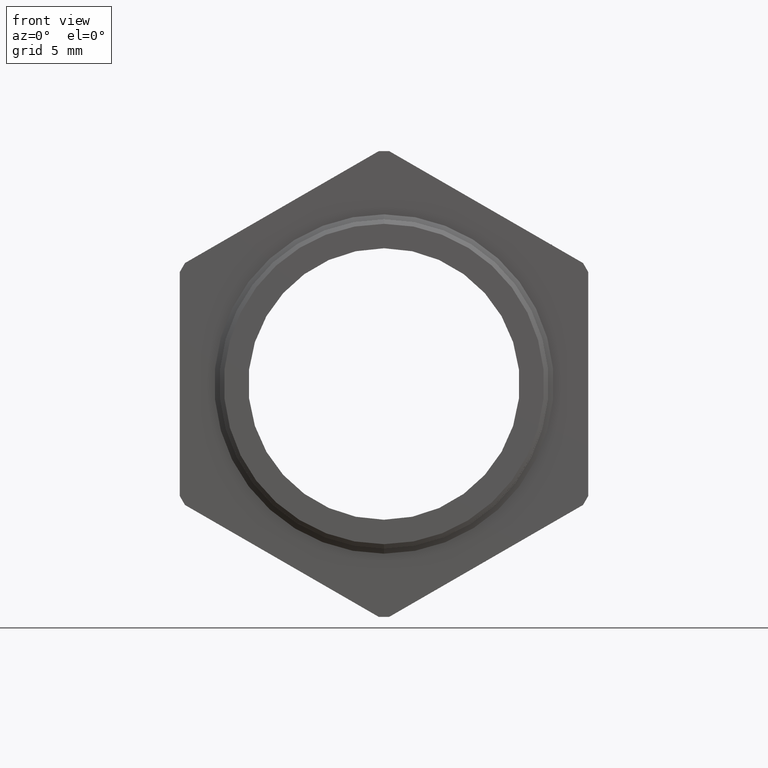
[diagram: clean part render]
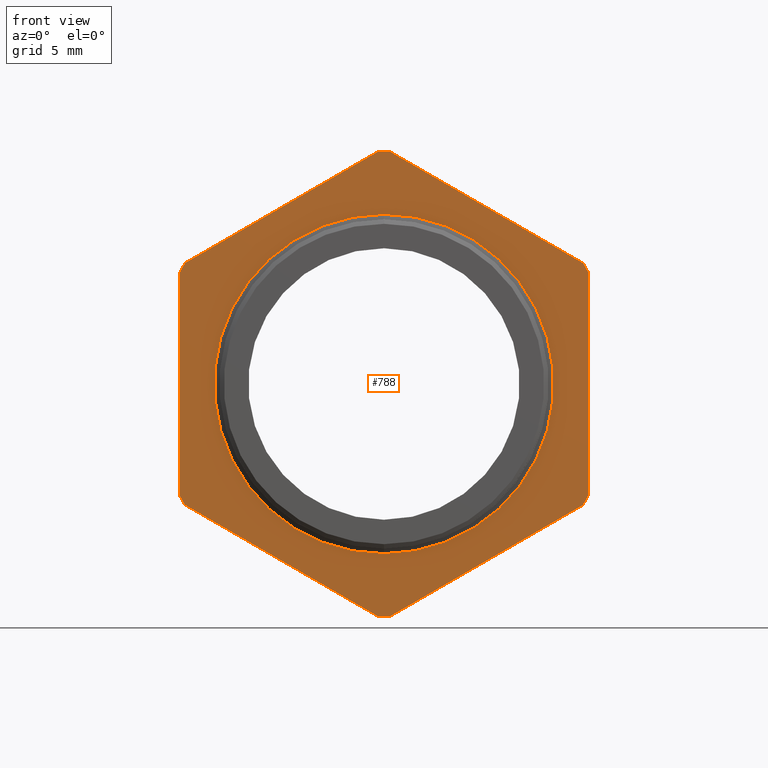
[diagram: same view with one face highlighted and labeled with its STEP entity id]
A machine part, front view. The second image highlights one B-rep face of the part: STEP entity #788.
In plain terms, the highlighted planar face has unit normal (0, -1, -0).
Its self-contained STEP definition (entity closure, byte-faithful):
#6 = VERTEX_POINT ( 'NONE', #1080 ) ;
#87 = VERTEX_POINT ( 'NONE', #1243 ) ;
#91 = EDGE_CURVE ( 'NONE', #6, #87, #1300, .T. ) ;
#419 = EDGE_CURVE ( 'NONE', #445, #420, #1915, .T. ) ;
#420 = VERTEX_POINT ( 'NONE', #1906 ) ;
#445 = VERTEX_POINT ( 'NONE', #1980 ) ;
#652 = VERTEX_POINT ( 'NONE', #2333 ) ;
#656 = VERTEX_POINT ( 'NONE', #2328 ) ;
#658 = EDGE_CURVE ( 'NONE', #678, #656, #2327, .T. ) ;
#663 = VERTEX_POINT ( 'NONE', #2375 ) ;
#678 = VERTEX_POINT ( 'NONE', #2412 ) ;
#688 = EDGE_CURVE ( 'NONE', #761, #768, #2392, .T. ) ;
#695 = VERTEX_POINT ( 'NONE', #2433 ) ;
#702 = VERTEX_POINT ( 'NONE', #2421 ) ;
#704 = EDGE_CURVE ( 'NONE', #695, #702, #2483, .T. ) ;
#706 = EDGE_CURVE ( 'NONE', #87, #652, #2476, .T. ) ;
#711 = VERTEX_POINT ( 'NONE', #2457 ) ;
#718 = VERTEX_POINT ( 'NONE', #2507 ) ;
#720 = EDGE_CURVE ( 'NONE', #711, #718, #2506, .T. ) ;
#722 = VERTEX_POINT ( 'NONE', #2497 ) ;
#724 = EDGE_CURVE ( 'NONE', #663, #722, #2496, .T. ) ;
#736 = EDGE_CURVE ( 'NONE', #768, #695, #2524, .T. ) ;
#751 = EDGE_CURVE ( 'NONE', #656, #761, #2541, .T. ) ;
#761 = VERTEX_POINT ( 'NONE', #2567 ) ;
#768 = VERTEX_POINT ( 'NONE', #2613 ) ;
#770 = ORIENTED_EDGE ( 'NONE', *, *, #724, .T. ) ;
#771 = ORIENTED_EDGE ( 'NONE', *, *, #787, .T. ) ;
#772 = ORIENTED_EDGE ( 'NONE', *, *, #658, .T. ) ;
#773 = ORIENTED_EDGE ( 'NONE', *, *, #751, .T. ) ;
#774 = ORIENTED_EDGE ( 'NONE', *, *, #688, .T. ) ;
#775 = ORIENTED_EDGE ( 'NONE', *, *, #736, .T. ) ;
#776 = ORIENTED_EDGE ( 'NONE', *, *, #704, .T. ) ;
#777 = ORIENTED_EDGE ( 'NONE', *, *, #805, .T. ) ;
#787 = EDGE_CURVE ( 'NONE', #722, #678, #2598, .T. ) ;
#788 = ADVANCED_FACE ( 'NONE', ( #2646, #2645 ), #2644, .T. ) ;
#789 = EDGE_LOOP ( 'NONE', ( #790, #846 ) ) ;
#790 = ORIENTED_EDGE ( 'NONE', *, *, #845, .F. ) ;
#792 = EDGE_CURVE ( 'NONE', #718, #6, #2639, .T. ) ;
#802 = EDGE_CURVE ( 'NONE', #652, #663, #2677, .T. ) ;
#805 = EDGE_CURVE ( 'NONE', #702, #711, #2667, .T. ) ;
#834 = ORIENTED_EDGE ( 'NONE', *, *, #720, .T. ) ;
#835 = ORIENTED_EDGE ( 'NONE', *, *, #792, .T. ) ;
#836 = ORIENTED_EDGE ( 'NONE', *, *, #91, .T. ) ;
#837 = ORIENTED_EDGE ( 'NONE', *, *, #706, .T. ) ;
#838 = ORIENTED_EDGE ( 'NONE', *, *, #802, .T. ) ;
#845 = EDGE_CURVE ( 'NONE', #420, #445, #2719, .T. ) ;
#846 = ORIENTED_EDGE ( 'NONE', *, *, #419, .F. ) ;
#847 = EDGE_LOOP ( 'NONE', ( #770, #771, #772, #773, #774, #775, #776, #777, #834, #835, #836, #837, #838 ) ) ;
#1080 = CARTESIAN_POINT ( 'NONE',  ( -0.01610430421661499000, 0.7500000000000001100, -0.7066165094205616400 ) ) ;
#1243 = CARTESIAN_POINT ( 'NONE',  ( 0.0000000000000000000, 0.7500000000000001100, -0.7067999999999999800 ) ) ;
#1296 = DIRECTION ( 'NONE',  ( 0.0000000000000000000, 0.0000000000000000000, -1.000000000000000000 ) ) ;
#1297 = DIRECTION ( 'NONE',  ( -0.0000000000000000000, -1.000000000000000000, -0.0000000000000000000 ) ) ;
#1298 = CARTESIAN_POINT ( 'NONE',  ( 0.0000000000000000000, 0.7500000000000001100, 0.0000000000000000000 ) ) ;
#1299 = AXIS2_PLACEMENT_3D ( 'NONE', #1298, #1297, #1296 ) ;
#1300 = CIRCLE ( 'NONE', #1299, 0.7067999999999999800 ) ;
#1906 = CARTESIAN_POINT ( 'NONE',  ( 0.0000000000000000000, 0.7499999999999995600, 0.5150000000000000100 ) ) ;
#1907 = DIRECTION ( 'NONE',  ( 0.0000000000000000000, 0.0000000000000000000, -1.000000000000000000 ) ) ;
#1908 = DIRECTION ( 'NONE',  ( -0.0000000000000000000, -1.000000000000000000, -0.0000000000000000000 ) ) ;
#1909 = CARTESIAN_POINT ( 'NONE',  ( 0.0000000000000000000, 0.7499999999999995600, 0.0000000000000000000 ) ) ;
#1910 = AXIS2_PLACEMENT_3D ( 'NONE', #1909, #1908, #1907 ) ;
#1915 = CIRCLE ( 'NONE', #1910, 0.5150000000000000100 ) ;
#1980 = CARTESIAN_POINT ( 'NONE',  ( 6.306931015608869800E-017, 0.7499999999999995600, -0.5150000000000000100 ) ) ;
#2141 = DIRECTION ( 'NONE',  ( 0.0000000000000000000, 0.0000000000000000000, -1.000000000000000000 ) ) ;
#2142 = DIRECTION ( 'NONE',  ( -0.0000000000000000000, -1.000000000000000000, -0.0000000000000000000 ) ) ;
#2327 = CIRCLE ( 'NONE', #2389, 0.7067999999999999800 ) ;
#2328 = CARTESIAN_POINT ( 'NONE',  ( 0.6038956957833852000, 0.7500000000000001100, 0.3672549912721420600 ) ) ;
#2333 = CARTESIAN_POINT ( 'NONE',  ( 0.01610430421661424000, 0.7500000000000001100, -0.7066165094205617600 ) ) ;
#2375 = CARTESIAN_POINT ( 'NONE',  ( 0.6038956957833853100, 0.7500000000000001100, -0.3672549912721419000 ) ) ;
#2386 = DIRECTION ( 'NONE',  ( 0.0000000000000000000, 0.0000000000000000000, -1.000000000000000000 ) ) ;
#2387 = DIRECTION ( 'NONE',  ( -0.0000000000000000000, -1.000000000000000000, -0.0000000000000000000 ) ) ;
#2388 = CARTESIAN_POINT ( 'NONE',  ( 0.0000000000000000000, 0.7500000000000001100, 0.0000000000000000000 ) ) ;
#2389 = AXIS2_PLACEMENT_3D ( 'NONE', #2388, #2387, #2386 ) ;
#2390 = CARTESIAN_POINT ( 'NONE',  ( 0.0000000000000000000, 0.7500000000000001100, 0.0000000000000000000 ) ) ;
#2391 = AXIS2_PLACEMENT_3D ( 'NONE', #2390, #2142, #2141 ) ;
#2392 = CIRCLE ( 'NONE', #2391, 0.7067999999999999800 ) ;
#2412 = CARTESIAN_POINT ( 'NONE',  ( 0.6199999999999996600, 0.7500000000000001100, 0.3393615181484196900 ) ) ;
#2421 = CARTESIAN_POINT ( 'NONE',  ( -0.6200000000000000000, 0.7500000000000001100, 0.3393615181484195300 ) ) ;
#2433 = CARTESIAN_POINT ( 'NONE',  ( -0.6038956957833848700, 0.7500000000000001100, 0.3672549912721424500 ) ) ;
#2457 = CARTESIAN_POINT ( 'NONE',  ( -0.6200000000000000000, 0.7500000000000001100, -0.3393615181484192500 ) ) ;
#2468 = DIRECTION ( 'NONE',  ( 0.0000000000000000000, 0.0000000000000000000, -1.000000000000000000 ) ) ;
#2469 = DIRECTION ( 'NONE',  ( -0.0000000000000000000, -1.000000000000000000, -0.0000000000000000000 ) ) ;
#2470 = CARTESIAN_POINT ( 'NONE',  ( 0.0000000000000000000, 0.7500000000000001100, 0.0000000000000000000 ) ) ;
#2471 = AXIS2_PLACEMENT_3D ( 'NONE', #2470, #2469, #2468 ) ;
#2476 = CIRCLE ( 'NONE', #2471, 0.7067999999999999800 ) ;
#2479 = DIRECTION ( 'NONE',  ( 0.0000000000000000000, 0.0000000000000000000, -1.000000000000000000 ) ) ;
#2480 = DIRECTION ( 'NONE',  ( -0.0000000000000000000, -1.000000000000000000, -0.0000000000000000000 ) ) ;
#2481 = CARTESIAN_POINT ( 'NONE',  ( 0.0000000000000000000, 0.7500000000000001100, 0.0000000000000000000 ) ) ;
#2482 = AXIS2_PLACEMENT_3D ( 'NONE', #2481, #2480, #2479 ) ;
#2483 = CIRCLE ( 'NONE', #2482, 0.7067999999999999800 ) ;
#2492 = DIRECTION ( 'NONE',  ( 0.0000000000000000000, 0.0000000000000000000, -1.000000000000000000 ) ) ;
#2493 = DIRECTION ( 'NONE',  ( -0.0000000000000000000, -1.000000000000000000, -0.0000000000000000000 ) ) ;
#2494 = CARTESIAN_POINT ( 'NONE',  ( 0.0000000000000000000, 0.7500000000000001100, 0.0000000000000000000 ) ) ;
#2495 = AXIS2_PLACEMENT_3D ( 'NONE', #2494, #2493, #2492 ) ;
#2496 = CIRCLE ( 'NONE', #2495, 0.7067999999999999800 ) ;
#2497 = CARTESIAN_POINT ( 'NONE',  ( 0.6199999999999996600, 0.7500000000000001100, -0.3393615181484199700 ) ) ;
#2502 = DIRECTION ( 'NONE',  ( 0.0000000000000000000, 0.0000000000000000000, -1.000000000000000000 ) ) ;
#2503 = DIRECTION ( 'NONE',  ( -0.0000000000000000000, -1.000000000000000000, -0.0000000000000000000 ) ) ;
#2504 = CARTESIAN_POINT ( 'NONE',  ( 0.0000000000000000000, 0.7500000000000001100, 0.0000000000000000000 ) ) ;
#2505 = AXIS2_PLACEMENT_3D ( 'NONE', #2504, #2503, #2502 ) ;
#2506 = CIRCLE ( 'NONE', #2505, 0.7067999999999999800 ) ;
#2507 = CARTESIAN_POINT ( 'NONE',  ( -0.6038956957833850900, 0.7500000000000001100, -0.3672549912721421200 ) ) ;
#2515 = DIRECTION ( 'NONE',  ( -0.8660254037844386000, 0.0000000000000000000, -0.5000000000000000000 ) ) ;
#2516 = VECTOR ( 'NONE', #2515, 39.37007874015748900 ) ;
#2523 = CARTESIAN_POINT ( 'NONE',  ( -2.578350717041919600E-017, 0.7500000000000001100, 0.7159143337951360300 ) ) ;
#2524 = LINE ( 'NONE', #2523, #2516 ) ;
#2540 = CARTESIAN_POINT ( 'NONE',  ( 0.6199999999999996600, 0.7500000000000001100, 0.3579571668975680100 ) ) ;
#2541 = LINE ( 'NONE', #2540, #2587 ) ;
#2567 = CARTESIAN_POINT ( 'NONE',  ( 0.01610430421661499000, 0.7500000000000001100, 0.7066165094205617600 ) ) ;
#2586 = DIRECTION ( 'NONE',  ( -0.8660254037844384900, 0.0000000000000000000, 0.5000000000000002200 ) ) ;
#2587 = VECTOR ( 'NONE', #2586, 39.37007874015748900 ) ;
#2598 = LINE ( 'NONE', #2649, #2648 ) ;
#2613 = CARTESIAN_POINT ( 'NONE',  ( -0.01610430421661520500, 0.7500000000000001100, 0.7066165094205616400 ) ) ;
#2636 = DIRECTION ( 'NONE',  ( 0.8660254037844386000, 0.0000000000000000000, -0.5000000000000001100 ) ) ;
#2637 = VECTOR ( 'NONE', #2636, 39.37007874015748100 ) ;
#2638 = CARTESIAN_POINT ( 'NONE',  ( -0.6200000000000000000, 0.7500000000000001100, -0.3579571668975679000 ) ) ;
#2639 = LINE ( 'NONE', #2638, #2637 ) ;
#2640 = DIRECTION ( 'NONE',  ( 0.0000000000000000000, 0.0000000000000000000, -1.000000000000000000 ) ) ;
#2641 = DIRECTION ( 'NONE',  ( 0.0000000000000000000, -1.000000000000000000, -0.0000000000000000000 ) ) ;
#2642 = AXIS2_PLACEMENT_3D ( 'NONE', #2643, #2641, #2640 ) ;
#2643 = CARTESIAN_POINT ( 'NONE',  ( 0.5150000000000000100, 0.7500000000000001100, 0.0000000000000000000 ) ) ;
#2644 = PLANE ( 'NONE',  #2642 ) ;
#2645 = FACE_OUTER_BOUND ( 'NONE', #847, .T. ) ;
#2646 = FACE_BOUND ( 'NONE', #789, .T. ) ;
#2647 = DIRECTION ( 'NONE',  ( 0.0000000000000000000, 0.0000000000000000000, 1.000000000000000000 ) ) ;
#2648 = VECTOR ( 'NONE', #2647, 39.37007874015748100 ) ;
#2649 = CARTESIAN_POINT ( 'NONE',  ( 0.6199999999999996600, 0.7500000000000001100, -0.3579571668975680100 ) ) ;
#2664 = DIRECTION ( 'NONE',  ( 0.0000000000000000000, 0.0000000000000000000, -1.000000000000000000 ) ) ;
#2665 = VECTOR ( 'NONE', #2664, 39.37007874015748100 ) ;
#2666 = CARTESIAN_POINT ( 'NONE',  ( -0.6200000000000000000, 0.7500000000000001100, 0.3579571668975680700 ) ) ;
#2667 = LINE ( 'NONE', #2666, #2665 ) ;
#2668 = DIRECTION ( 'NONE',  ( 0.8660254037844388200, 0.0000000000000000000, 0.4999999999999998300 ) ) ;
#2669 = VECTOR ( 'NONE', #2668, 39.37007874015748900 ) ;
#2676 = CARTESIAN_POINT ( 'NONE',  ( -2.796682918471196600E-016, 0.7500000000000001100, -0.7159143337951358000 ) ) ;
#2677 = LINE ( 'NONE', #2676, #2669 ) ;
#2715 = DIRECTION ( 'NONE',  ( 0.0000000000000000000, 0.0000000000000000000, -1.000000000000000000 ) ) ;
#2716 = DIRECTION ( 'NONE',  ( -0.0000000000000000000, -1.000000000000000000, -0.0000000000000000000 ) ) ;
#2717 = CARTESIAN_POINT ( 'NONE',  ( 0.0000000000000000000, 0.7499999999999995600, 0.0000000000000000000 ) ) ;
#2718 = AXIS2_PLACEMENT_3D ( 'NONE', #2717, #2716, #2715 ) ;
#2719 = CIRCLE ( 'NONE', #2718, 0.5150000000000000100 ) ;